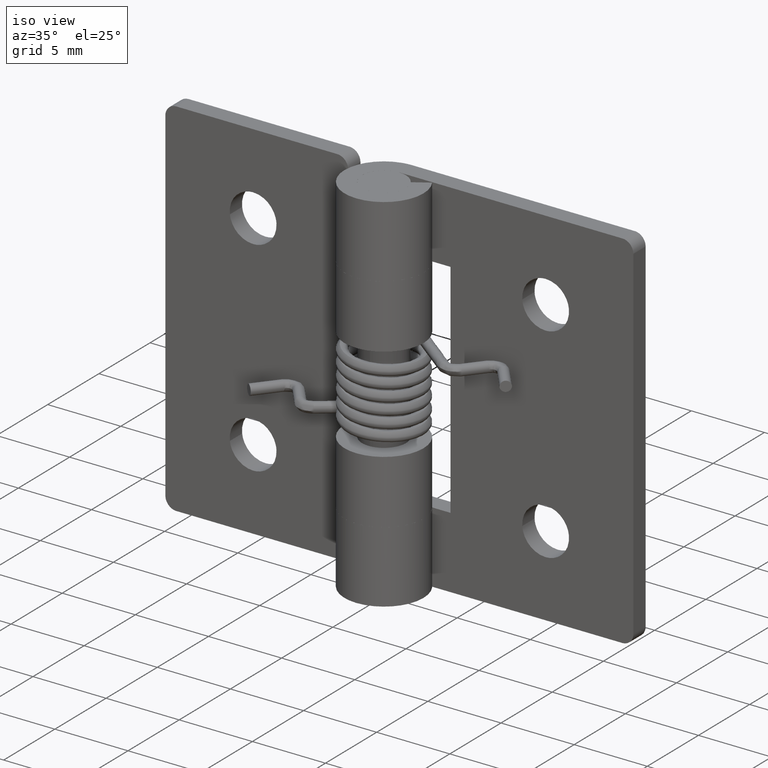
[diagram: clean part render]
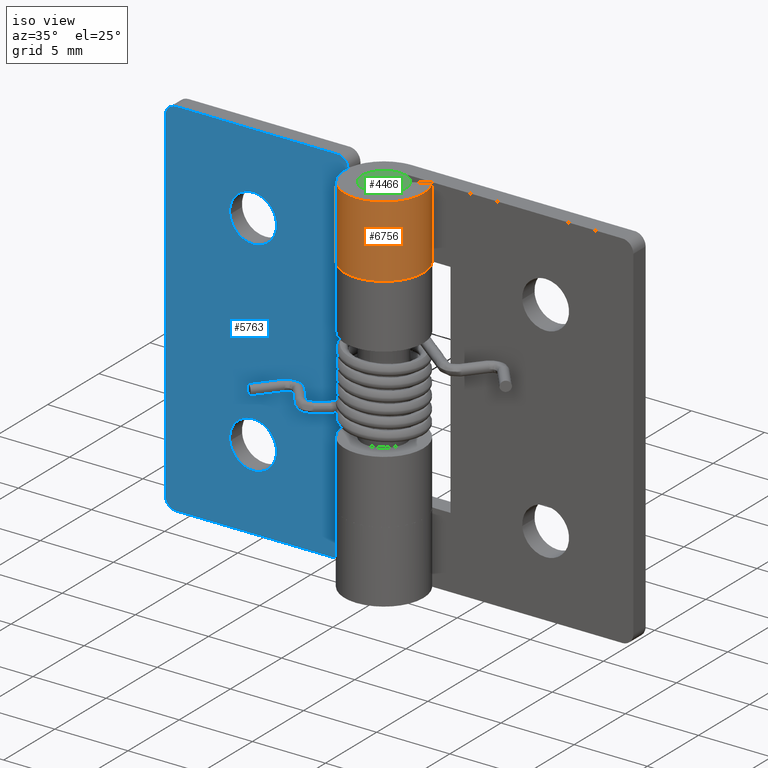
[diagram: same view with three faces highlighted in distinct colors, each labeled with its STEP entity id]
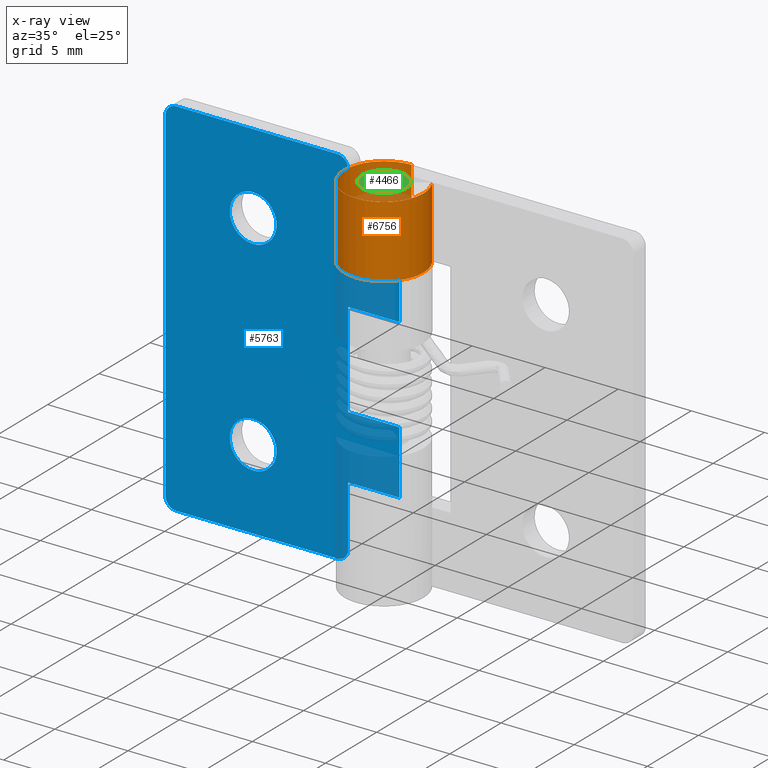
[diagram: x-ray of the same camera — body ghosted, the three highlighted faces saturated]
A machine part, iso view with three faces highlighted in distinct colors.
The next image is the same camera in x-ray (body ghosted, the three faces saturated) — at least one of them is partly hidden behind the body in this view.
Their STEP definitions:

[orange] entity #6756 — the highlighted face is a freeform B-spline surface patch.
#6469=CARTESIAN_POINT('',(2.277608394786075,1.450000000000000,20.099997999999950));
#6470=VERTEX_POINT('',#6469);
#6476=CARTESIAN_POINT('',(0.0,2.700005000000000,20.099997999999999));
#6477=VERTEX_POINT('',#6476);
#6478=CARTESIAN_POINT('',(2.277608394786075,1.450000000000000,20.099997999999950));
#6479=CARTESIAN_POINT('',(3.402760049365828,-0.317351709784824,20.099997999999918));
#6480=CARTESIAN_POINT('',(1.970202022019797,-1.846161787720576,20.099997999999928));
#6481=CARTESIAN_POINT('',(0.537643994673766,-3.374971865656328,20.099997999999943));
#6482=CARTESIAN_POINT('',(-1.299038105676657,-2.366957575708926,20.099997999999971));
#6483=CARTESIAN_POINT('',(-3.135720206027080,-1.358943285761523,20.099998000000021));
#6484=CARTESIAN_POINT('',(-2.615415091760208,0.670532624467413,20.099998000000021));
#6485=CARTESIAN_POINT('',(-2.095109977493334,2.700008534696349,20.099998000000031));
#6486=CARTESIAN_POINT('',(0.0,2.700005000000000,20.099997999999999));
#6494=(BOUNDED_CURVE()B_SPLINE_CURVE(2,(#6478,#6479,#6480,#6481,#6482,#6483,#6484,#6485,#6486),.UNSPECIFIED.,.F.,.U.)B_SPLINE_CURVE_WITH_KNOTS((3,2,2,2,3),(0.0,0.250000000000000,0.500000000000000,0.750000000000000,1.0),.UNSPECIFIED.)CURVE()GEOMETRIC_REPRESENTATION_ITEM()RATIONAL_B_SPLINE_CURVE((1.0,0.790045133626194,1.0,0.790045133626194,1.0,0.790045133626194,1.0,0.790045133626194,1.0))REPRESENTATION_ITEM(''));
#6495=EDGE_CURVE('',#6470,#6477,#6494,.T.);
#6524=CARTESIAN_POINT('',(0.0,2.700005000000000,24.999984999999999));
#6525=VERTEX_POINT('',#6524);
#6531=CARTESIAN_POINT('',(2.277608394786075,1.450000000000000,24.999984999999999));
#6532=VERTEX_POINT('',#6531);
#6533=CARTESIAN_POINT('',(2.277608394786075,1.450000000000000,24.999984999999999));
#6534=CARTESIAN_POINT('',(3.402760049365826,-0.317351709784823,24.999984999999999));
#6535=CARTESIAN_POINT('',(1.970202022019796,-1.846161787720575,24.999984999999999));
#6536=CARTESIAN_POINT('',(0.537643994673765,-3.374971865656327,24.999984999999999));
#6537=CARTESIAN_POINT('',(-1.299038105676657,-2.366957575708926,24.999984999999999));
#6538=CARTESIAN_POINT('',(-3.135720206027081,-1.358943285761524,24.999984999999999));
#6539=CARTESIAN_POINT('',(-2.615415091760207,0.670532624467412,24.999984999999999));
#6540=CARTESIAN_POINT('',(-2.095109977493334,2.700008534696349,24.999984999999999));
#6541=CARTESIAN_POINT('',(0.0,2.700005000000000,24.999984999999999));
#6549=(BOUNDED_CURVE()B_SPLINE_CURVE(2,(#6533,#6534,#6535,#6536,#6537,#6538,#6539,#6540,#6541),.UNSPECIFIED.,.F.,.U.)B_SPLINE_CURVE_WITH_KNOTS((3,2,2,2,3),(0.0,0.250000000000000,0.500000000000000,0.750000000000000,1.0),.UNSPECIFIED.)CURVE()GEOMETRIC_REPRESENTATION_ITEM()RATIONAL_B_SPLINE_CURVE((1.0,0.790045133626194,1.0,0.790045133626194,1.0,0.790045133626194,1.0,0.790045133626194,1.0))REPRESENTATION_ITEM(''));
#6550=EDGE_CURVE('',#6532,#6525,#6549,.T.);
#6676=CARTESIAN_POINT('',(2.277608394786075,1.450000000000000,20.099997999999950));
#6677=CARTESIAN_POINT('',(2.277608394786075,1.450000000000000,24.999984999999999));
#6678=QUASI_UNIFORM_CURVE('',1,(#6676,#6677),.UNSPECIFIED.,.F.,.U.);
#6679=EDGE_CURVE('',#6470,#6532,#6678,.T.);
#6724=CARTESIAN_POINT('',(2.225140709279442,1.529296839697048,19.977498324999921));
#6725=CARTESIAN_POINT('',(2.225140709279442,1.529296839697048,25.125547166875009));
#6726=CARTESIAN_POINT('',(4.147730332970872,-1.268088421205942,19.977498324999925));
#6727=CARTESIAN_POINT('',(4.147730332970872,-1.268088421205942,25.125547166875016));
#6728=CARTESIAN_POINT('',(0.989553312155601,-2.512127433551466,19.977498324999921));
#6729=CARTESIAN_POINT('',(0.989553312155601,-2.512127433551466,25.125547166875009));
#6730=CARTESIAN_POINT('',(-2.168623708659669,-3.756166445896991,19.977498324999925));
#6731=CARTESIAN_POINT('',(-2.168623708659669,-3.756166445896991,25.125547166875016));
#6732=CARTESIAN_POINT('',(-2.670342831077175,-0.399085410049946,19.977498324999921));
#6733=CARTESIAN_POINT('',(-2.670342831077175,-0.399085410049946,25.125547166875009));
#6734=CARTESIAN_POINT('',(-3.172061953494680,2.957995625797097,19.977498324999925));
#6735=CARTESIAN_POINT('',(-3.172061953494680,2.957995625797097,25.125547166875016));
#6736=CARTESIAN_POINT('',(0.211839558465185,2.691676801079445,19.977498324999921));
#6737=CARTESIAN_POINT('',(0.211839558465185,2.691676801079445,25.125547166875009));
#6745=(BOUNDED_SURFACE()B_SPLINE_SURFACE(1,2,((#6724,#6726,#6728,#6730,#6732,#6734,#6736),(#6725,#6727,#6729,#6731,#6733,#6735,#6737)),.UNSPECIFIED.,.F.,.F.,.U.)B_SPLINE_SURFACE_WITH_KNOTS((2,2),(3,2,2,3),(0.0,5.148048841875089),(0.0,5.209301600829762,10.418603201659520,15.627904802489290),.UNSPECIFIED.)GEOMETRIC_REPRESENTATION_ITEM()RATIONAL_B_SPLINE_SURFACE(((1.0,0.622514636637620,1.0,0.622514636637620,1.0,0.622514636637620,1.0),(1.0,0.622514636637620,1.0,0.622514636637620,1.0,0.622514636637620,1.0)))REPRESENTATION_ITEM('')SURFACE());
#6746=ORIENTED_EDGE('',*,*,#6495,.F.);
#6747=ORIENTED_EDGE('',*,*,#6679,.T.);
#6748=ORIENTED_EDGE('',*,*,#6550,.T.);
#6749=CARTESIAN_POINT('',(0.0,2.700005000000000,20.099997999999999));
#6750=CARTESIAN_POINT('',(0.0,2.700005000000000,24.999984999999999));
#6751=QUASI_UNIFORM_CURVE('',1,(#6749,#6750),.UNSPECIFIED.,.F.,.U.);
#6752=EDGE_CURVE('',#6477,#6525,#6751,.T.);
#6753=ORIENTED_EDGE('',*,*,#6752,.F.);
#6754=EDGE_LOOP('',(#6746,#6747,#6748,#6753));
#6755=FACE_OUTER_BOUND('',#6754,.T.);
#6756=ADVANCED_FACE('',(#6755),#6745,.T.);

[blue] entity #5763 — the highlighted face is a freeform B-spline surface patch.
#4530=CARTESIAN_POINT('',(-11.588822242180971,1.500000000000000,19.311137224542691));
#4531=VERTEX_POINT('',#4530);
#4532=CARTESIAN_POINT('',(-10.000006999999901,1.500000000000000,21.099992000000199));
#4533=VERTEX_POINT('',#4532);
#4534=CARTESIAN_POINT('',(-11.588822242180971,1.500000000000000,19.311137224542691));
#4535=CARTESIAN_POINT('',(-11.600006999999897,1.500000000000000,19.405233408550380));
#4536=CARTESIAN_POINT('',(-11.600006999999900,1.500000000000000,19.499992000000201));
#4537=CARTESIAN_POINT('',(-11.600006999999898,1.500000000000000,21.099992000000206));
#4538=CARTESIAN_POINT('',(-10.000006999999901,1.500000000000000,21.099992000000199));
#4546=(BOUNDED_CURVE()B_SPLINE_CURVE(2,(#4534,#4535,#4536,#4537,#4538),.UNSPECIFIED.,.F.,.U.)B_SPLINE_CURVE_WITH_KNOTS((3,2,3),(0.729562473514219,0.750000000000000,1.0),.UNSPECIFIED.)CURVE()GEOMETRIC_REPRESENTATION_ITEM()RATIONAL_B_SPLINE_CURVE((0.956026754185092,0.976055948331978,1.0,0.707106781186548,1.0))REPRESENTATION_ITEM(''));
#4547=EDGE_CURVE('',#4531,#4533,#4546,.T.);
#4588=CARTESIAN_POINT('',(-8.402991322528347,1.500000000000000,19.597669663312150));
#4589=VERTEX_POINT('',#4588);
#4595=CARTESIAN_POINT('',(-10.000006999999901,1.500000000000000,21.099992000000199));
#4596=CARTESIAN_POINT('',(-8.494877293056886,1.500000000000000,21.099992000000203));
#4597=CARTESIAN_POINT('',(-8.402991322528347,1.500000000000000,19.597669663312157));
#4605=(BOUNDED_CURVE()B_SPLINE_CURVE(2,(#4595,#4596,#4597),.UNSPECIFIED.,.F.,.U.)B_SPLINE_CURVE_WITH_KNOTS((3,3),(0.0,0.239332962229828),.UNSPECIFIED.)CURVE()GEOMETRIC_REPRESENTATION_ITEM()RATIONAL_B_SPLINE_CURVE((1.0,0.719603993297389,0.976072041647183))REPRESENTATION_ITEM(''));
#4606=EDGE_CURVE('',#4533,#4589,#4605,.T.);
#4629=CARTESIAN_POINT('',(-10.000006999999901,1.500000000000000,17.899992000000200));
#4630=VERTEX_POINT('',#4629);
#4631=CARTESIAN_POINT('',(-10.000006999999901,1.500000000000000,17.899992000000200));
#4632=CARTESIAN_POINT('',(-11.421086241510027,1.500000000000000,17.899992000000207));
#4633=CARTESIAN_POINT('',(-11.588822242180974,1.500000000000000,19.311137224542687));
#4641=(BOUNDED_CURVE()B_SPLINE_CURVE(2,(#4631,#4632,#4633),.UNSPECIFIED.,.F.,.U.)B_SPLINE_CURVE_WITH_KNOTS((3,3),(0.500000000000000,0.729562473514220),.UNSPECIFIED.)CURVE()GEOMETRIC_REPRESENTATION_ITEM()RATIONAL_B_SPLINE_CURVE((1.0,0.731050832854569,0.956026754185094))REPRESENTATION_ITEM(''));
#4642=EDGE_CURVE('',#4630,#4531,#4641,.T.);
#4644=CARTESIAN_POINT('',(-8.402991322528347,1.500000000000000,19.597669663312157));
#4645=CARTESIAN_POINT('',(-8.400006999999899,1.500000000000000,19.548876421334285));
#4646=CARTESIAN_POINT('',(-8.400006999999899,1.500000000000000,19.499992000000201));
#4647=CARTESIAN_POINT('',(-8.400006999999901,1.500000000000000,17.899992000000196));
#4648=CARTESIAN_POINT('',(-10.000006999999901,1.500000000000000,17.899992000000200));
#4656=(BOUNDED_CURVE()B_SPLINE_CURVE(2,(#4644,#4645,#4646,#4647,#4648),.UNSPECIFIED.,.F.,.U.)B_SPLINE_CURVE_WITH_KNOTS((3,2,3),(0.239332962229828,0.250000000000000,0.500000000000000),.UNSPECIFIED.)CURVE()GEOMETRIC_REPRESENTATION_ITEM()RATIONAL_B_SPLINE_CURVE((0.976072041647183,0.987502787889158,1.0,0.707106781186548,1.0))REPRESENTATION_ITEM(''));
#4657=EDGE_CURVE('',#4589,#4630,#4656,.T.);
#4716=CARTESIAN_POINT('',(-11.588822242180971,1.500000000000000,5.311145224542688));
#4717=VERTEX_POINT('',#4716);
#4718=CARTESIAN_POINT('',(-10.000006999999901,1.500000000000000,7.100000000000200));
#4719=VERTEX_POINT('',#4718);
#4720=CARTESIAN_POINT('',(-11.588822242180971,1.500000000000000,5.311145224542688));
#4721=CARTESIAN_POINT('',(-11.600006999999897,1.500000000000000,5.405241408550374));
#4722=CARTESIAN_POINT('',(-11.600006999999900,1.500000000000000,5.500000000000200));
#4723=CARTESIAN_POINT('',(-11.600006999999898,1.500000000000000,7.100000000000200));
#4724=CARTESIAN_POINT('',(-10.000006999999901,1.500000000000000,7.100000000000200));
#4732=(BOUNDED_CURVE()B_SPLINE_CURVE(2,(#4720,#4721,#4722,#4723,#4724),.UNSPECIFIED.,.F.,.U.)B_SPLINE_CURVE_WITH_KNOTS((3,2,3),(0.729562473514219,0.750000000000000,1.0),.UNSPECIFIED.)CURVE()GEOMETRIC_REPRESENTATION_ITEM()RATIONAL_B_SPLINE_CURVE((0.956026754185092,0.976055948331978,1.0,0.707106781186548,1.0))REPRESENTATION_ITEM(''));
#4733=EDGE_CURVE('',#4717,#4719,#4732,.T.);
#4774=CARTESIAN_POINT('',(-8.402991322528349,1.500000000000000,5.597677663312155));
#4775=VERTEX_POINT('',#4774);
#4781=CARTESIAN_POINT('',(-10.000006999999901,1.500000000000000,7.100000000000200));
#4782=CARTESIAN_POINT('',(-8.494877293056888,1.500000000000000,7.100000000000200));
#4783=CARTESIAN_POINT('',(-8.402991322528349,1.500000000000000,5.597677663312155));
#4791=(BOUNDED_CURVE()B_SPLINE_CURVE(2,(#4781,#4782,#4783),.UNSPECIFIED.,.F.,.U.)B_SPLINE_CURVE_WITH_KNOTS((3,3),(0.0,0.239332962229828),.UNSPECIFIED.)CURVE()GEOMETRIC_REPRESENTATION_ITEM()RATIONAL_B_SPLINE_CURVE((1.0,0.719603993297389,0.976072041647182))REPRESENTATION_ITEM(''));
#4792=EDGE_CURVE('',#4719,#4775,#4791,.T.);
#4815=CARTESIAN_POINT('',(-10.000006999999901,1.500000000000000,3.900000000000200));
#4816=VERTEX_POINT('',#4815);
#4817=CARTESIAN_POINT('',(-10.000006999999901,1.500000000000000,3.900000000000200));
#4818=CARTESIAN_POINT('',(-11.421086241510027,1.500000000000000,3.900000000000201));
#4819=CARTESIAN_POINT('',(-11.588822242180974,1.500000000000000,5.311145224542688));
#4827=(BOUNDED_CURVE()B_SPLINE_CURVE(2,(#4817,#4818,#4819),.UNSPECIFIED.,.F.,.U.)B_SPLINE_CURVE_WITH_KNOTS((3,3),(0.500000000000000,0.729562473514220),.UNSPECIFIED.)CURVE()GEOMETRIC_REPRESENTATION_ITEM()RATIONAL_B_SPLINE_CURVE((1.0,0.731050832854569,0.956026754185094))REPRESENTATION_ITEM(''));
#4828=EDGE_CURVE('',#4816,#4717,#4827,.T.);
#4830=CARTESIAN_POINT('',(-8.402991322528349,1.500000000000000,5.597677663312155));
#4831=CARTESIAN_POINT('',(-8.400006999999897,1.500000000000000,5.548884421334283));
#4832=CARTESIAN_POINT('',(-8.400006999999899,1.500000000000000,5.500000000000200));
#4833=CARTESIAN_POINT('',(-8.400006999999901,1.500000000000000,3.900000000000200));
#4834=CARTESIAN_POINT('',(-10.000006999999901,1.500000000000000,3.900000000000200));
#4842=(BOUNDED_CURVE()B_SPLINE_CURVE(2,(#4830,#4831,#4832,#4833,#4834),.UNSPECIFIED.,.F.,.U.)B_SPLINE_CURVE_WITH_KNOTS((3,2,3),(0.239332962229828,0.250000000000000,0.500000000000000),.UNSPECIFIED.)CURVE()GEOMETRIC_REPRESENTATION_ITEM()RATIONAL_B_SPLINE_CURVE((0.976072041647182,0.987502787889158,1.0,0.707106781186548,1.0))REPRESENTATION_ITEM(''));
#4843=EDGE_CURVE('',#4775,#4816,#4842,.T.);
#4894=CARTESIAN_POINT('',(-3.500000000000000,1.500000000000000,24.249984999999999));
#4895=VERTEX_POINT('',#4894);
#4896=CARTESIAN_POINT('',(-4.250000000000000,1.500000000000055,24.999984999999999));
#4897=VERTEX_POINT('',#4896);
#4898=CARTESIAN_POINT('',(-3.500000000000000,1.500000000000000,24.249984999999999));
#4899=CARTESIAN_POINT('',(-3.499999999999999,1.500000000000055,24.999984999999995));
#4900=CARTESIAN_POINT('',(-4.250000000000000,1.500000000000055,24.999984999999999));
#4908=(BOUNDED_CURVE()B_SPLINE_CURVE(2,(#4898,#4899,#4900),.UNSPECIFIED.,.F.,.U.)CURVE()GEOMETRIC_REPRESENTATION_ITEM()QUASI_UNIFORM_CURVE()RATIONAL_B_SPLINE_CURVE((1.0,0.707106781186548,1.0))REPRESENTATION_ITEM(''));
#4909=EDGE_CURVE('',#4895,#4897,#4908,.T.);
#4955=CARTESIAN_POINT('',(-4.250000000000000,1.500000000000055,0.0));
#4956=VERTEX_POINT('',#4955);
#4957=CARTESIAN_POINT('',(-3.500000000000000,1.500000000000055,0.750000000000000));
#4958=VERTEX_POINT('',#4957);
#4959=CARTESIAN_POINT('',(-4.250000000000000,1.500000000000055,0.0));
#4960=CARTESIAN_POINT('',(-3.499999999999999,1.500000000000055,0.0));
#4961=CARTESIAN_POINT('',(-3.500000000000000,1.500000000000055,0.750000000000000));
#4969=(BOUNDED_CURVE()B_SPLINE_CURVE(2,(#4959,#4960,#4961),.UNSPECIFIED.,.F.,.U.)CURVE()GEOMETRIC_REPRESENTATION_ITEM()QUASI_UNIFORM_CURVE()RATIONAL_B_SPLINE_CURVE((1.0,0.707106781186548,1.0))REPRESENTATION_ITEM(''));
#4970=EDGE_CURVE('',#4956,#4958,#4969,.T.);
#5033=CARTESIAN_POINT('',(-16.000008000000101,1.499999999999946,24.249984999999999));
#5034=VERTEX_POINT('',#5033);
#5040=CARTESIAN_POINT('',(-15.250008000000101,1.500000000000000,24.999984999999999));
#5041=VERTEX_POINT('',#5040);
#5042=CARTESIAN_POINT('',(-15.250008000000101,1.499999999999946,24.999984999999999));
#5043=CARTESIAN_POINT('',(-16.000008000000097,1.499999999999946,24.999984999999995));
#5044=CARTESIAN_POINT('',(-16.000008000000101,1.499999999999946,24.249984999999999));
#5052=(BOUNDED_CURVE()B_SPLINE_CURVE(2,(#5042,#5043,#5044),.UNSPECIFIED.,.F.,.U.)CURVE()GEOMETRIC_REPRESENTATION_ITEM()QUASI_UNIFORM_CURVE()RATIONAL_B_SPLINE_CURVE((1.0,0.707106781186548,1.0))REPRESENTATION_ITEM(''));
#5053=EDGE_CURVE('',#5041,#5034,#5052,.T.);
#5094=CARTESIAN_POINT('',(-15.250008000000101,1.499999999999946,0.0));
#5095=VERTEX_POINT('',#5094);
#5101=CARTESIAN_POINT('',(-16.000008000000101,1.499999999999946,0.750000000000000));
#5102=VERTEX_POINT('',#5101);
#5103=CARTESIAN_POINT('',(-16.000008000000101,1.499999999999946,0.750000000000000));
#5104=CARTESIAN_POINT('',(-16.000008000000097,1.499999999999946,0.0));
#5105=CARTESIAN_POINT('',(-15.250008000000101,1.499999999999946,0.0));
#5113=(BOUNDED_CURVE()B_SPLINE_CURVE(2,(#5103,#5104,#5105),.UNSPECIFIED.,.F.,.U.)CURVE()GEOMETRIC_REPRESENTATION_ITEM()QUASI_UNIFORM_CURVE()RATIONAL_B_SPLINE_CURVE((1.0,0.707106781186548,1.0))REPRESENTATION_ITEM(''));
#5114=EDGE_CURVE('',#5102,#5095,#5113,.T.);
#5159=CARTESIAN_POINT('',(-3.500000000000000,1.500000000000000,9.249992000000001));
#5160=VERTEX_POINT('',#5159);
#5166=CARTESIAN_POINT('',(9.184352E-017,1.500000000000000,9.249992000000001));
#5167=VERTEX_POINT('',#5166);
#5168=CARTESIAN_POINT('',(-3.500000000000000,1.500000000000000,9.249992000000001));
#5169=CARTESIAN_POINT('',(9.184352E-017,1.500000000000000,9.249992000000001));
#5170=QUASI_UNIFORM_CURVE('',1,(#5168,#5169),.UNSPECIFIED.,.F.,.U.);
#5171=EDGE_CURVE('',#5160,#5167,#5170,.T.);
#5237=CARTESIAN_POINT('',(9.184352E-017,1.500000000000000,15.749992000000050));
#5238=VERTEX_POINT('',#5237);
#5258=CARTESIAN_POINT('',(-3.500000000000000,1.499999999999946,15.749992000000001));
#5259=VERTEX_POINT('',#5258);
#5260=CARTESIAN_POINT('',(9.184352E-017,1.500000000000000,15.749992000000050));
#5261=CARTESIAN_POINT('',(-3.500000000000000,1.499999999999946,15.749992000000001));
#5262=QUASI_UNIFORM_CURVE('',1,(#5260,#5261),.UNSPECIFIED.,.F.,.U.);
#5263=EDGE_CURVE('',#5238,#5259,#5262,.T.);
#5285=CARTESIAN_POINT('',(-3.500000000000000,1.499999999999946,15.749992000000001));
#5286=CARTESIAN_POINT('',(-3.500000000000000,1.500000000000000,9.249992000000001));
#5287=QUASI_UNIFORM_CURVE('',1,(#5285,#5286),.UNSPECIFIED.,.F.,.U.);
#5288=EDGE_CURVE('',#5259,#5160,#5287,.T.);
#5313=CARTESIAN_POINT('',(-3.500000000000000,1.499999999999946,20.099997999999999));
#5314=VERTEX_POINT('',#5313);
#5315=CARTESIAN_POINT('',(-3.500000000000000,1.499999999999946,20.099997999999999));
#5316=CARTESIAN_POINT('',(-3.500000000000000,1.500000000000000,24.249984999999999));
#5317=QUASI_UNIFORM_CURVE('',1,(#5315,#5316),.UNSPECIFIED.,.F.,.U.);
#5318=EDGE_CURVE('',#5314,#4895,#5317,.T.);
#5341=CARTESIAN_POINT('',(9.184352E-017,1.500000000000000,20.099997999999950));
#5342=VERTEX_POINT('',#5341);
#5343=CARTESIAN_POINT('',(9.184352E-017,1.500000000000000,20.099997999999950));
#5344=CARTESIAN_POINT('',(-3.500000000000000,1.499999999999946,20.099997999999999));
#5345=QUASI_UNIFORM_CURVE('',1,(#5343,#5344),.UNSPECIFIED.,.F.,.U.);
#5346=EDGE_CURVE('',#5342,#5314,#5345,.T.);
#5433=CARTESIAN_POINT('',(9.184352E-017,1.500000000000000,4.899994000000000));
#5434=VERTEX_POINT('',#5433);
#5454=CARTESIAN_POINT('',(-3.500000000000000,1.499999999999946,4.899994000000000));
#5455=VERTEX_POINT('',#5454);
#5456=CARTESIAN_POINT('',(-3.500000000000000,1.499999999999946,4.899994000000000));
#5457=CARTESIAN_POINT('',(9.184352E-017,1.500000000000000,4.899994000000000));
#5458=QUASI_UNIFORM_CURVE('',1,(#5456,#5457),.UNSPECIFIED.,.F.,.U.);
#5459=EDGE_CURVE('',#5455,#5434,#5458,.T.);
#5504=CARTESIAN_POINT('',(9.184352E-017,1.500000000000000,4.899994000000000));
#5505=CARTESIAN_POINT('',(9.184352E-017,1.500000000000000,9.249992000000001));
#5506=QUASI_UNIFORM_CURVE('',1,(#5504,#5505),.UNSPECIFIED.,.F.,.U.);
#5507=EDGE_CURVE('',#5434,#5167,#5506,.T.);
#5535=CARTESIAN_POINT('',(9.184352E-017,1.500000000000000,15.749992000000050));
#5536=CARTESIAN_POINT('',(9.184352E-017,1.500000000000000,20.099997999999950));
#5537=QUASI_UNIFORM_CURVE('',1,(#5535,#5536),.UNSPECIFIED.,.F.,.U.);
#5538=EDGE_CURVE('',#5238,#5342,#5537,.T.);
#5654=CARTESIAN_POINT('',(-4.250000000000000,1.500000000000055,0.0));
#5655=CARTESIAN_POINT('',(-15.250008000000101,1.499999999999946,0.0));
#5656=QUASI_UNIFORM_CURVE('',1,(#5654,#5655),.UNSPECIFIED.,.F.,.U.);
#5657=EDGE_CURVE('',#4956,#5095,#5656,.T.);
#5673=CARTESIAN_POINT('',(-4.250000000000000,1.500000000000055,24.999984999999999));
#5674=CARTESIAN_POINT('',(-15.250008000000101,1.500000000000000,24.999984999999999));
#5675=QUASI_UNIFORM_CURVE('',1,(#5673,#5674),.UNSPECIFIED.,.F.,.U.);
#5676=EDGE_CURVE('',#4897,#5041,#5675,.T.);
#5700=CARTESIAN_POINT('',(-16.000008000000101,1.499999999999946,0.750000000000000));
#5701=CARTESIAN_POINT('',(-16.000008000000101,1.499999999999946,24.249984999999999));
#5702=QUASI_UNIFORM_CURVE('',1,(#5700,#5701),.UNSPECIFIED.,.F.,.U.);
#5703=EDGE_CURVE('',#5102,#5034,#5702,.T.);
#5720=CARTESIAN_POINT('',(-3.500000000000000,1.500000000000055,0.750000000000000));
#5721=CARTESIAN_POINT('',(-3.500000000000000,1.499999999999946,4.899994000000000));
#5722=QUASI_UNIFORM_CURVE('',1,(#5720,#5721),.UNSPECIFIED.,.F.,.U.);
#5723=EDGE_CURVE('',#4958,#5455,#5722,.T.);
#5728=CARTESIAN_POINT('',(-16.799208068195728,1.500000000000000,-1.248749202295177));
#5729=CARTESIAN_POINT('',(-16.799208068195728,1.500000000000000,26.248734872847031));
#5730=CARTESIAN_POINT('',(0.799200783451724,1.500000000000000,-1.248749202295177));
#5731=CARTESIAN_POINT('',(0.799200783451724,1.500000000000000,26.248734872847031));
#5732=B_SPLINE_SURFACE_WITH_KNOTS('',1,1,((#5728,#5730),(#5729,#5731)),.UNSPECIFIED.,.F.,.F.,.U.,(2,2),(2,2),(0.0,27.497484075142200),(0.0,17.598408851647449),.UNSPECIFIED.);
#5733=ORIENTED_EDGE('',*,*,#4909,.T.);
#5734=ORIENTED_EDGE('',*,*,#5676,.T.);
#5735=ORIENTED_EDGE('',*,*,#5053,.T.);
#5736=ORIENTED_EDGE('',*,*,#5703,.F.);
#5737=ORIENTED_EDGE('',*,*,#5114,.T.);
#5738=ORIENTED_EDGE('',*,*,#5657,.F.);
#5739=ORIENTED_EDGE('',*,*,#4970,.T.);
#5740=ORIENTED_EDGE('',*,*,#5723,.T.);
#5741=ORIENTED_EDGE('',*,*,#5459,.T.);
#5742=ORIENTED_EDGE('',*,*,#5507,.T.);
#5743=ORIENTED_EDGE('',*,*,#5171,.F.);
#5744=ORIENTED_EDGE('',*,*,#5288,.F.);
#5745=ORIENTED_EDGE('',*,*,#5263,.F.);
#5746=ORIENTED_EDGE('',*,*,#5538,.T.);
#5747=ORIENTED_EDGE('',*,*,#5346,.T.);
#5748=ORIENTED_EDGE('',*,*,#5318,.T.);
#5749=EDGE_LOOP('',(#5733,#5734,#5735,#5736,#5737,#5738,#5739,#5740,#5741,#5742,#5743,#5744,#5745,#5746,#5747,#5748));
#5750=FACE_OUTER_BOUND('',#5749,.T.);
#5751=ORIENTED_EDGE('',*,*,#4792,.T.);
#5752=ORIENTED_EDGE('',*,*,#4843,.T.);
#5753=ORIENTED_EDGE('',*,*,#4828,.T.);
#5754=ORIENTED_EDGE('',*,*,#4733,.T.);
#5755=EDGE_LOOP('',(#5751,#5752,#5753,#5754));
#5756=FACE_BOUND('',#5755,.T.);
#5757=ORIENTED_EDGE('',*,*,#4606,.T.);
#5758=ORIENTED_EDGE('',*,*,#4657,.T.);
#5759=ORIENTED_EDGE('',*,*,#4642,.T.);
#5760=ORIENTED_EDGE('',*,*,#4547,.T.);
#5761=EDGE_LOOP('',(#5757,#5758,#5759,#5760));
#5762=FACE_BOUND('',#5761,.T.);
#5763=ADVANCED_FACE('',(#5750,#5756,#5762),#5732,.F.);

[green] entity #4466 — the highlighted face is a freeform B-spline surface patch.
#4298=CARTESIAN_POINT('',(-0.177051352010474,1.489514289542488,24.999984999999999));
#4299=VERTEX_POINT('',#4298);
#4305=CARTESIAN_POINT('',(1.500000000000000,0.0,24.999984999999999));
#4306=VERTEX_POINT('',#4305);
#4307=CARTESIAN_POINT('',(-0.177051352010474,1.489514289542488,24.999984999999995));
#4308=CARTESIAN_POINT('',(-0.088836179503469,1.500000000000000,24.999985000000002));
#4309=CARTESIAN_POINT('',(0.0,1.500000000000000,24.999984999999999));
#4310=CARTESIAN_POINT('',(1.500000000000000,1.500000000000000,24.999984999999995));
#4311=CARTESIAN_POINT('',(1.500000000000000,0.0,24.999984999999999));
#4319=(BOUNDED_CURVE()B_SPLINE_CURVE(2,(#4307,#4308,#4309,#4310,#4311),.UNSPECIFIED.,.F.,.U.)B_SPLINE_CURVE_WITH_KNOTS((3,2,3),(0.229562473509895,0.250000000000000,0.500000000000000),.UNSPECIFIED.)CURVE()GEOMETRIC_REPRESENTATION_ITEM()RATIONAL_B_SPLINE_CURVE((0.956026754176617,0.976055948326912,1.0,0.707106781186548,1.0))REPRESENTATION_ITEM(''));
#4320=EDGE_CURVE('',#4299,#4306,#4319,.T.);
#4322=CARTESIAN_POINT('',(0.091572809386774,-1.497202197627633,24.999984999999999));
#4323=VERTEX_POINT('',#4322);
#4324=CARTESIAN_POINT('',(1.500000000000000,0.0,24.999984999999999));
#4325=CARTESIAN_POINT('',(1.500000000000000,-1.411059100198985,24.999984999999988));
#4326=CARTESIAN_POINT('',(0.091572809386774,-1.497202197627632,24.999985000000002));
#4334=(BOUNDED_CURVE()B_SPLINE_CURVE(2,(#4324,#4325,#4326),.UNSPECIFIED.,.F.,.U.)B_SPLINE_CURVE_WITH_KNOTS((3,3),(0.500000000000000,0.739332962222494),.UNSPECIFIED.)CURVE()GEOMETRIC_REPRESENTATION_ITEM()RATIONAL_B_SPLINE_CURVE((1.0,0.719603993305982,0.976072041631464))REPRESENTATION_ITEM(''));
#4335=EDGE_CURVE('',#4306,#4323,#4334,.T.);
#4409=CARTESIAN_POINT('',(-1.500000000000000,0.0,24.999984999999999));
#4410=VERTEX_POINT('',#4409);
#4411=CARTESIAN_POINT('',(0.091572809386774,-1.497202197627633,24.999984999999999));
#4412=CARTESIAN_POINT('',(0.045829145032609,-1.500000000000000,24.999984999999999));
#4413=CARTESIAN_POINT('',(0.0,-1.500000000000000,24.999984999999999));
#4414=CARTESIAN_POINT('',(-1.500000000000000,-1.500000000000000,24.999984999999995));
#4415=CARTESIAN_POINT('',(-1.500000000000000,0.0,24.999984999999999));
#4423=(BOUNDED_CURVE()B_SPLINE_CURVE(2,(#4411,#4412,#4413,#4414,#4415),.UNSPECIFIED.,.F.,.U.)B_SPLINE_CURVE_WITH_KNOTS((3,2,3),(0.739332962222494,0.750000000000000,1.0),.UNSPECIFIED.)CURVE()GEOMETRIC_REPRESENTATION_ITEM()RATIONAL_B_SPLINE_CURVE((0.976072041631465,0.987502787880567,1.0,0.707106781186548,1.0))REPRESENTATION_ITEM(''));
#4424=EDGE_CURVE('',#4323,#4410,#4423,.T.);
#4426=CARTESIAN_POINT('',(-1.500000000000000,0.0,24.999984999999999));
#4427=CARTESIAN_POINT('',(-1.500000000000000,1.332261788881411,24.999984999999999));
#4428=CARTESIAN_POINT('',(-0.177051352010474,1.489514289542488,24.999984999999999));
#4436=(BOUNDED_CURVE()B_SPLINE_CURVE(2,(#4426,#4427,#4428),.UNSPECIFIED.,.F.,.U.)B_SPLINE_CURVE_WITH_KNOTS((3,3),(0.0,0.229562473509895),.UNSPECIFIED.)CURVE()GEOMETRIC_REPRESENTATION_ITEM()RATIONAL_B_SPLINE_CURVE((1.0,0.731050832859636,0.956026754176617))REPRESENTATION_ITEM(''));
#4437=EDGE_CURVE('',#4410,#4299,#4436,.T.);
#4455=CARTESIAN_POINT('',(-1.649849994185418,-1.649813485518628,24.999984999999999));
#4456=CARTESIAN_POINT('',(1.649850074651688,-1.649813485518628,24.999984999999999));
#4457=CARTESIAN_POINT('',(-1.649849994185418,1.649822712317639,24.999984999999999));
#4458=CARTESIAN_POINT('',(1.649850074651688,1.649822712317639,24.999984999999999));
#4459=B_SPLINE_SURFACE_WITH_KNOTS('',1,1,((#4455,#4457),(#4456,#4458)),.UNSPECIFIED.,.F.,.F.,.U.,(2,2),(2,2),(0.0,3.299700068837106),(0.0,3.299636197836267),.UNSPECIFIED.);
#4460=ORIENTED_EDGE('',*,*,#4424,.F.);
#4461=ORIENTED_EDGE('',*,*,#4335,.F.);
#4462=ORIENTED_EDGE('',*,*,#4320,.F.);
#4463=ORIENTED_EDGE('',*,*,#4437,.F.);
#4464=EDGE_LOOP('',(#4460,#4461,#4462,#4463));
#4465=FACE_OUTER_BOUND('',#4464,.T.);
#4466=ADVANCED_FACE('',(#4465),#4459,.T.);